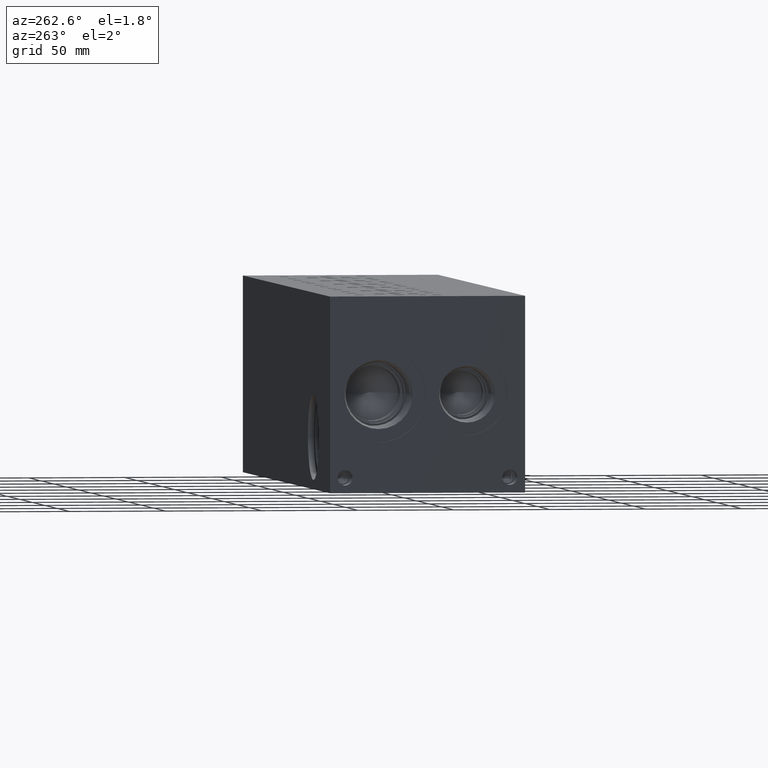
[diagram: clean part render]
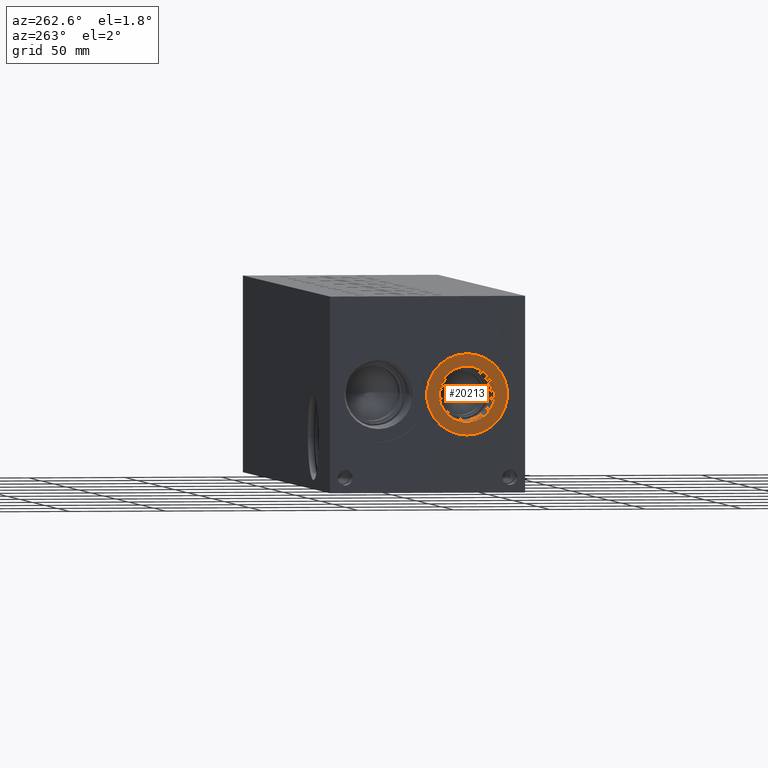
[diagram: same view with one face highlighted and labeled with its STEP entity id]
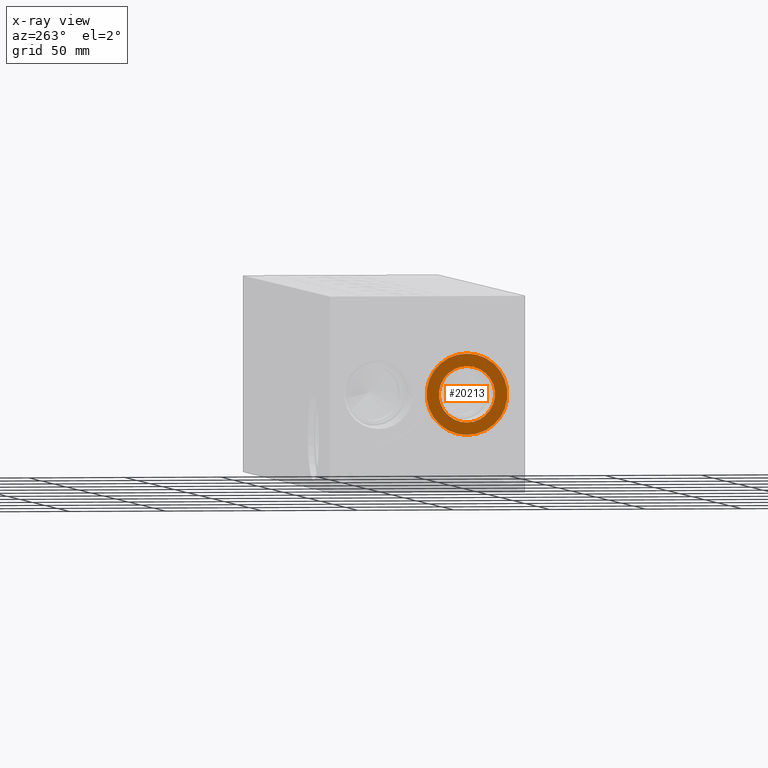
[diagram: x-ray of the same camera — body ghosted, the highlighted face saturated]
A machine part, auxiliary view. The second image highlights one B-rep face of the part: STEP entity #20213.
The next image is the same camera in x-ray: the body ghosted, the highlighted face saturated — about 0% of this face is hidden behind the body in this view.
In plain terms, the highlighted planar face has unit normal (1, 0, 0).
Its self-contained STEP definition (entity closure, byte-faithful):
#733=CIRCLE('',#21212,21.0185);
#734=CIRCLE('',#21213,21.0185);
#735=CIRCLE('',#21215,14.5923);
#736=CIRCLE('',#21216,14.5923);
#1856=FACE_BOUND('',#3893,.T.);
#2715=FACE_OUTER_BOUND('',#3892,.T.);
#3892=EDGE_LOOP('',(#16636,#16637));
#3893=EDGE_LOOP('',(#16638,#16639));
#9099=VERTEX_POINT('',#34174);
#9100=VERTEX_POINT('',#34176);
#9101=VERTEX_POINT('',#34180);
#9102=VERTEX_POINT('',#34181);
#11765=EDGE_CURVE('',#9099,#9100,#733,.T.);
#11766=EDGE_CURVE('',#9100,#9099,#734,.T.);
#11767=EDGE_CURVE('',#9101,#9102,#735,.T.);
#11768=EDGE_CURVE('',#9102,#9101,#736,.T.);
#16636=ORIENTED_EDGE('',*,*,#11766,.F.);
#16637=ORIENTED_EDGE('',*,*,#11765,.F.);
#16638=ORIENTED_EDGE('',*,*,#11767,.T.);
#16639=ORIENTED_EDGE('',*,*,#11768,.T.);
#18749=PLANE('',#21214);
#20213=ADVANCED_FACE('',(#2715,#1856),#18749,.F.);
#21212=AXIS2_PLACEMENT_3D('',#34177,#24821,#24822);
#21213=AXIS2_PLACEMENT_3D('',#34178,#24823,#24824);
#21214=AXIS2_PLACEMENT_3D('',#34179,#24825,#24826);
#21215=AXIS2_PLACEMENT_3D('',#34182,#24827,#24828);
#21216=AXIS2_PLACEMENT_3D('',#34183,#24829,#24830);
#24821=DIRECTION('center_axis',(1.,0.,0.));
#24822=DIRECTION('ref_axis',(0.,0.,-1.));
#24823=DIRECTION('center_axis',(1.,0.,0.));
#24824=DIRECTION('ref_axis',(0.,0.,-1.));
#24825=DIRECTION('center_axis',(1.,0.,0.));
#24826=DIRECTION('ref_axis',(0.,0.,-1.));
#24827=DIRECTION('center_axis',(1.,0.,0.));
#24828=DIRECTION('ref_axis',(0.,0.,-1.));
#24829=DIRECTION('center_axis',(1.,0.,0.));
#24830=DIRECTION('ref_axis',(0.,0.,-1.));
#34174=CARTESIAN_POINT('',(0.7874,30.1752,29.7815));
#34176=CARTESIAN_POINT('',(0.7874,30.1752,71.8185));
#34177=CARTESIAN_POINT('Origin',(0.7874,30.1752,50.8));
#34178=CARTESIAN_POINT('Origin',(0.7874,30.1752,50.8));
#34179=CARTESIAN_POINT('Origin',(0.7874,30.1752,65.3923));
#34180=CARTESIAN_POINT('',(0.7874,30.1752,65.3923));
#34181=CARTESIAN_POINT('',(0.787399999999999,30.1752,36.2077));
#34182=CARTESIAN_POINT('Origin',(0.7874,30.1752,50.8));
#34183=CARTESIAN_POINT('Origin',(0.7874,30.1752,50.8));